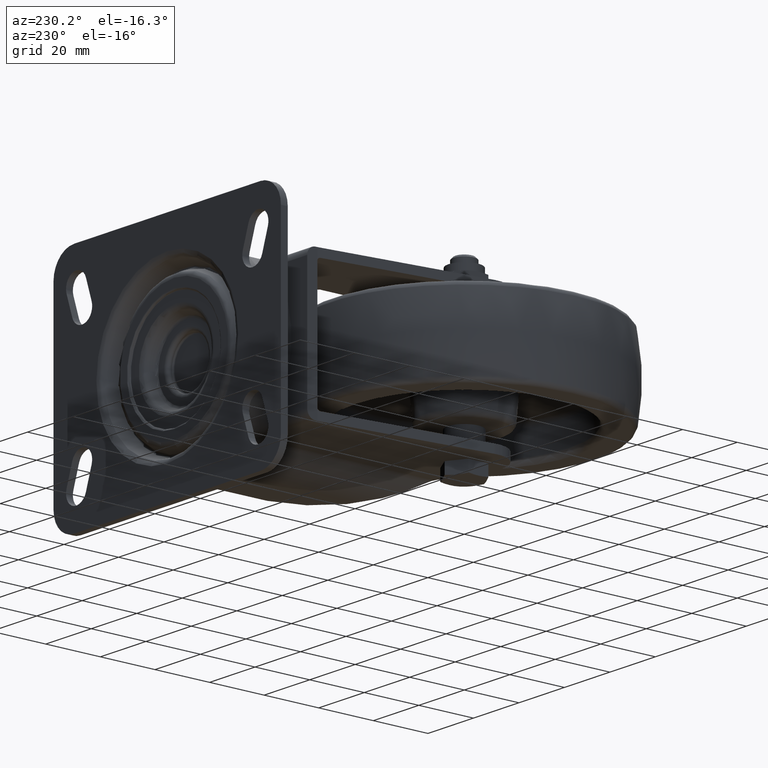
[diagram: clean part render]
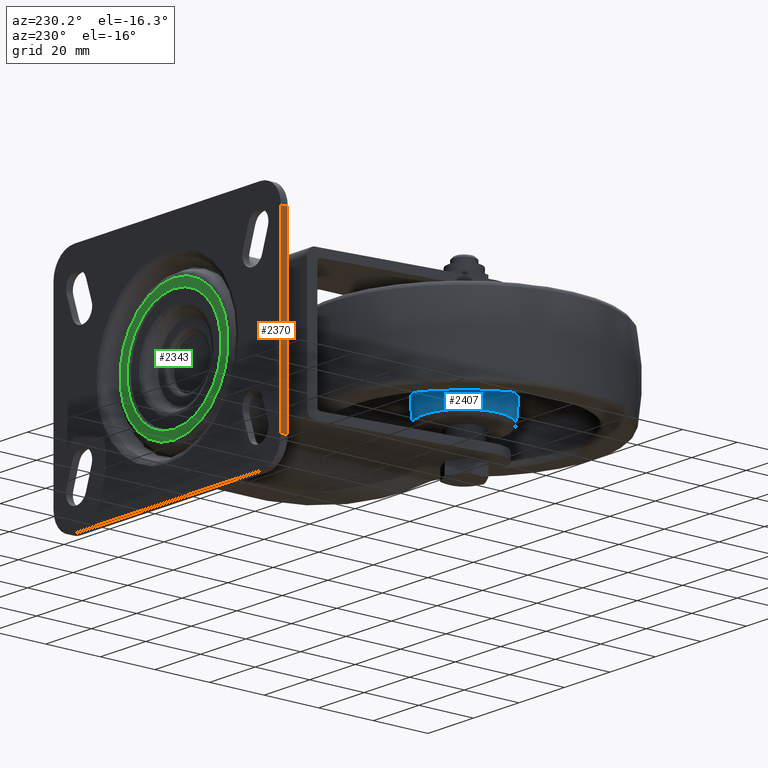
[diagram: same view with three faces highlighted in distinct colors, each labeled with its STEP entity id]
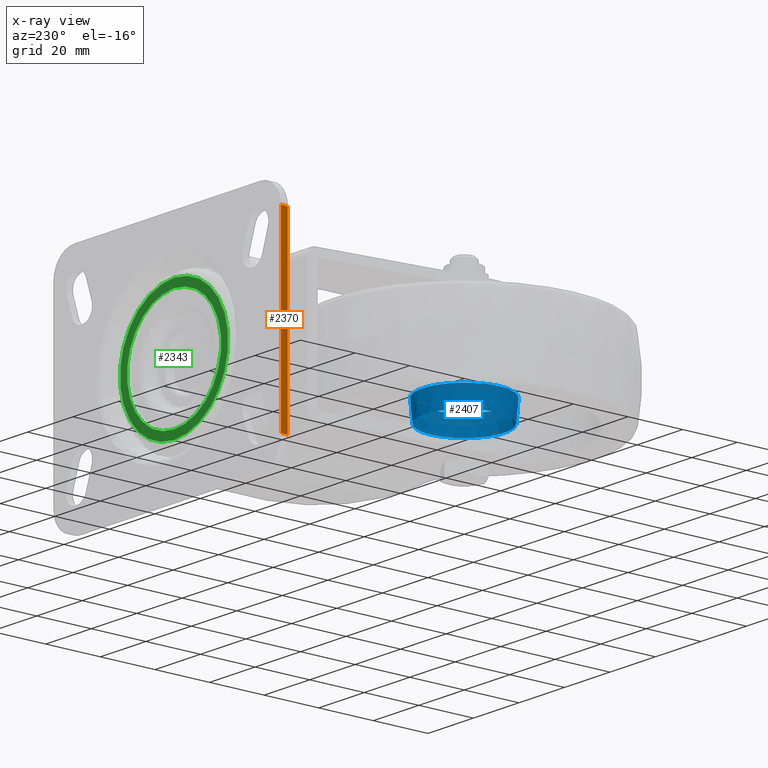
[diagram: x-ray of the same camera — body ghosted, the three highlighted faces saturated]
A machine part, auxiliary view with three faces highlighted in distinct colors.
The next image is the same camera in x-ray (body ghosted, the three faces saturated) — at least one of them is partly hidden behind the body in this view.
Their STEP definitions:

[orange] entity #2370 — the highlighted planar face has unit normal (-1, 0, 0).
#240=FACE_OUTER_BOUND('',#388,.T.);
#388=EDGE_LOOP('',(#1789,#1790,#1791,#1792));
#721=LINE('',#4107,#855);
#733=LINE('',#4142,#867);
#734=LINE('',#4145,#868);
#735=LINE('',#4146,#869);
#855=VECTOR('',#3151,2.5);
#867=VECTOR('',#3185,2.5);
#868=VECTOR('',#3190,67.);
#869=VECTOR('',#3191,67.);
#1022=VERTEX_POINT('',#4100);
#1025=VERTEX_POINT('',#4105);
#1036=VERTEX_POINT('',#4139);
#1037=VERTEX_POINT('',#4141);
#1297=EDGE_CURVE('',#1025,#1022,#721,.T.);
#1314=EDGE_CURVE('',#1037,#1036,#733,.T.);
#1316=EDGE_CURVE('',#1036,#1022,#734,.T.);
#1317=EDGE_CURVE('',#1037,#1025,#735,.T.);
#1789=ORIENTED_EDGE('',*,*,#1316,.T.);
#1790=ORIENTED_EDGE('',*,*,#1297,.F.);
#1791=ORIENTED_EDGE('',*,*,#1317,.F.);
#1792=ORIENTED_EDGE('',*,*,#1314,.T.);
#2129=PLANE('',#2623);
#2370=ADVANCED_FACE('',(#240),#2129,.T.);
#2623=AXIS2_PLACEMENT_3D('',#4144,#3188,#3189);
#3151=DIRECTION('',(0.,-1.,0.));
#3185=DIRECTION('',(0.,-1.,0.));
#3188=DIRECTION('center_axis',(-1.,0.,0.));
#3189=DIRECTION('ref_axis',(0.,0.,1.));
#3190=DIRECTION('',(0.,0.,1.));
#3191=DIRECTION('',(0.,0.,1.));
#4100=CARTESIAN_POINT('',(-13.,75.5,33.5));
#4105=CARTESIAN_POINT('',(-13.,78.,33.5));
#4107=CARTESIAN_POINT('',(-13.,78.,33.5));
#4139=CARTESIAN_POINT('',(-13.,75.5,-33.5));
#4141=CARTESIAN_POINT('',(-13.,78.,-33.5));
#4142=CARTESIAN_POINT('',(-13.,78.,-33.5));
#4144=CARTESIAN_POINT('Origin',(-13.,78.,-33.5));
#4145=CARTESIAN_POINT('',(-13.,75.5,-33.5));
#4146=CARTESIAN_POINT('',(-13.,78.,-33.5));

[blue] entity #2407 — the highlighted conical surface has half-angle 5 deg.
#57=CONICAL_SURFACE('',#2683,14.989258292807,0.0872664625997165);
#277=FACE_OUTER_BOUND('',#437,.T.);
#437=EDGE_LOOP('',(#1980,#1981,#1982,#1983,#1984,#1985));
#580=CIRCLE('',#2681,14.6597270481486);
#581=CIRCLE('',#2682,14.6597270481486);
#582=CIRCLE('',#2684,15.3187895374654);
#583=CIRCLE('',#2685,15.3187895374654);
#753=LINE('',#4334,#887);
#887=VECTOR('',#3333,14.989258292807);
#1070=VERTEX_POINT('',#4324);
#1071=VERTEX_POINT('',#4326);
#1072=VERTEX_POINT('',#4330);
#1073=VERTEX_POINT('',#4331);
#1380=EDGE_CURVE('',#1070,#1071,#580,.T.);
#1381=EDGE_CURVE('',#1071,#1070,#581,.T.);
#1382=EDGE_CURVE('',#1072,#1073,#582,.T.);
#1383=EDGE_CURVE('',#1073,#1072,#583,.T.);
#1384=EDGE_CURVE('',#1072,#1071,#753,.T.);
#1980=ORIENTED_EDGE('',*,*,#1382,.T.);
#1981=ORIENTED_EDGE('',*,*,#1383,.T.);
#1982=ORIENTED_EDGE('',*,*,#1384,.T.);
#1983=ORIENTED_EDGE('',*,*,#1380,.F.);
#1984=ORIENTED_EDGE('',*,*,#1381,.F.);
#1985=ORIENTED_EDGE('',*,*,#1384,.F.);
#2407=ADVANCED_FACE('',(#277),#57,.T.);
#2681=AXIS2_PLACEMENT_3D('',#4327,#3323,#3324);
#2682=AXIS2_PLACEMENT_3D('',#4328,#3325,#3326);
#2683=AXIS2_PLACEMENT_3D('',#4329,#3327,#3328);
#2684=AXIS2_PLACEMENT_3D('',#4332,#3329,#3330);
#2685=AXIS2_PLACEMENT_3D('',#4333,#3331,#3332);
#3323=DIRECTION('center_axis',(0.,0.,-1.));
#3324=DIRECTION('ref_axis',(1.,0.,0.));
#3325=DIRECTION('center_axis',(0.,0.,-1.));
#3326=DIRECTION('ref_axis',(1.,0.,0.));
#3327=DIRECTION('center_axis',(0.,0.,1.));
#3328=DIRECTION('ref_axis',(1.,0.,0.));
#3329=DIRECTION('center_axis',(0.,0.,-1.));
#3330=DIRECTION('ref_axis',(1.,0.,0.));
#3331=DIRECTION('center_axis',(0.,0.,-1.));
#3332=DIRECTION('ref_axis',(1.,0.,0.));
#3333=DIRECTION('',(0.0871557427476582,1.0673500138323E-17,-0.996194698091746));
#4324=CARTESIAN_POINT('',(14.6597270481486,-3.59047897769292E-15,-13.1743114854953));
#4326=CARTESIAN_POINT('',(-14.6597270481486,-1.79529878058891E-15,-13.1743114854953));
#4327=CARTESIAN_POINT('Origin',(0.,0.,-13.1743114854953));
#4328=CARTESIAN_POINT('Origin',(0.,0.,-13.1743114854953));
#4329=CARTESIAN_POINT('Origin',(0.,0.,-9.40775212365597));
#4330=CARTESIAN_POINT('',(-15.3187895374654,-1.87594870004479E-15,-5.64119276181663));
#4331=CARTESIAN_POINT('',(15.3187895374654,-1.8760106573869E-15,-5.64119276181663));
#4332=CARTESIAN_POINT('Origin',(0.,0.,-5.64119276181663));
#4333=CARTESIAN_POINT('Origin',(0.,0.,-5.64119276181663));
#4334=CARTESIAN_POINT('',(-14.989258292807,-1.8356547189879E-15,-9.40775212365597));

[green] entity #2343 — the highlighted planar face has unit normal (0, 1, 0).
#143=FACE_BOUND('',#359,.T.);
#213=FACE_OUTER_BOUND('',#358,.T.);
#358=EDGE_LOOP('',(#1690));
#359=EDGE_LOOP('',(#1691));
#517=CIRCLE('',#2534,20.675);
#518=CIRCLE('',#2536,23.8022887136805);
#975=VERTEX_POINT('',#3932);
#976=VERTEX_POINT('',#3936);
#1214=EDGE_CURVE('',#975,#975,#517,.T.);
#1215=EDGE_CURVE('',#976,#976,#518,.T.);
#1690=ORIENTED_EDGE('',*,*,#1215,.T.);
#1691=ORIENTED_EDGE('',*,*,#1214,.F.);
#2114=PLANE('',#2572);
#2343=ADVANCED_FACE('',(#213,#143),#2114,.T.);
#2534=AXIS2_PLACEMENT_3D('',#3934,#2951,#2952);
#2536=AXIS2_PLACEMENT_3D('',#3937,#2955,#2956);
#2572=AXIS2_PLACEMENT_3D('',#3999,#3040,#3041);
#2951=DIRECTION('center_axis',(0.,1.,0.));
#2952=DIRECTION('ref_axis',(1.,0.,0.));
#2955=DIRECTION('center_axis',(0.,1.,0.));
#2956=DIRECTION('ref_axis',(1.,0.,0.));
#3040=DIRECTION('center_axis',(0.,1.,0.));
#3041=DIRECTION('ref_axis',(0.,0.,1.));
#3932=CARTESIAN_POINT('',(37.,75.5,-20.675));
#3934=CARTESIAN_POINT('Origin',(37.,75.5,0.));
#3936=CARTESIAN_POINT('',(37.,75.5,-23.8022887136805));
#3937=CARTESIAN_POINT('Origin',(37.,75.5,0.));
#3999=CARTESIAN_POINT('Origin',(59.2386443568402,75.5,-5.44671703595654E-15));